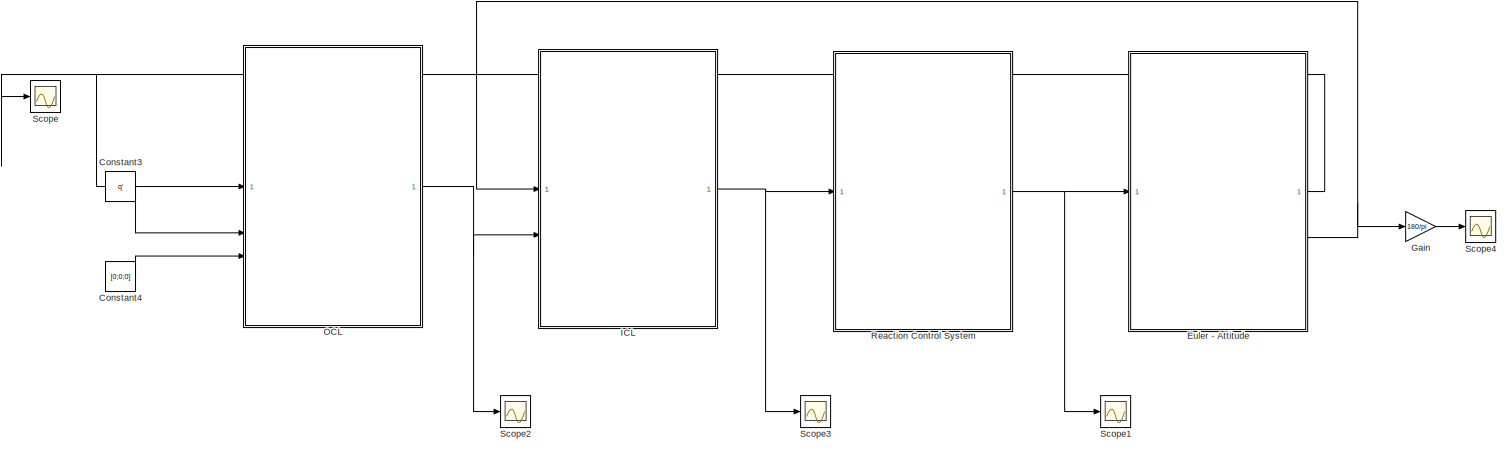
[diagram: root canvas - part 1/2, center side, full height]
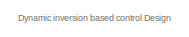
[diagram: root canvas - part 2/2, top left region]
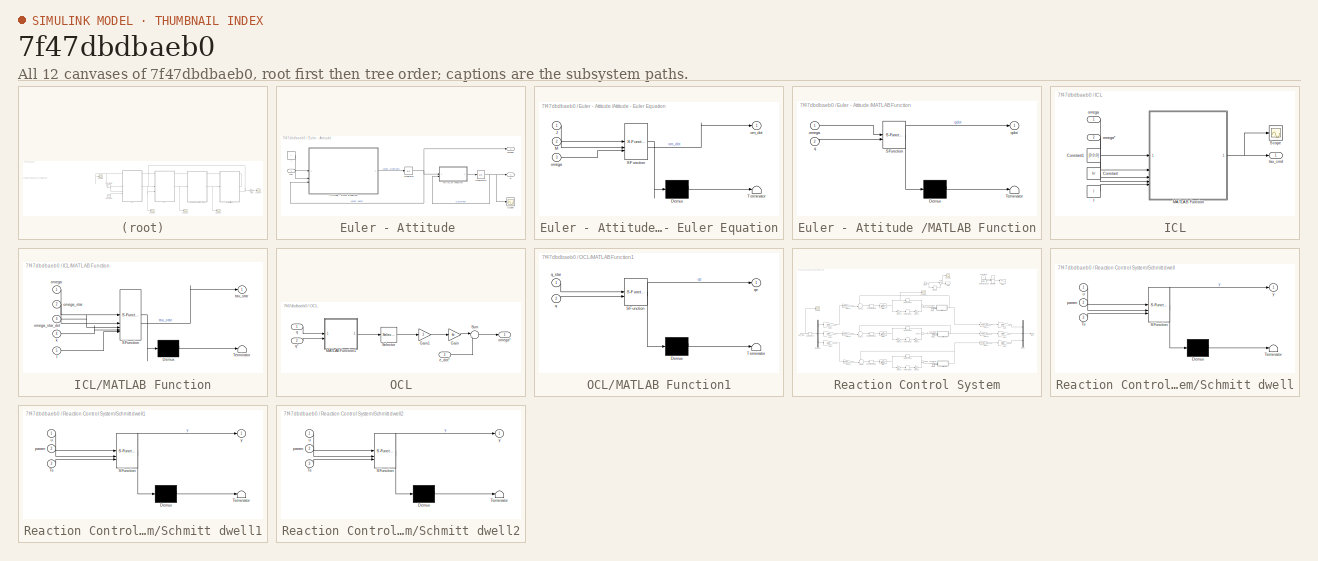
[diagram: thumbnail index - all 12 canvases of the model, root first then tree order]
MODEL slx_7f47dbdbaeb0
KIND model
CONFIG AbsTol = auto
CONFIG EnableMultiTasking = off
CONFIG FixedStep = 0.01
CONFIG MaxStep = auto
CONFIG MinStep = auto
CONFIG RelTol = 1e-3
CONFIG SampleTimeConstraint = Unconstrained
CONFIG SolverName = ode4
CONFIG StartTime = 0.0
CONFIG StopTime = 1000
BLOCK [Constant] Constant3
  Value = q'
BLOCK [Constant] Constant4
  Value = [0;0;0]
BLOCK [SubSystem] Euler - Attitude 
BLOCK [SubSystem] Euler - Attitude /Attitude - Euler Equation
  ErrorFcn = Stateflow.Translate.translate
  PermitHierarchicalResolution = ExplicitOnly
  SFBlockType = MATLAB Function
  TreatAsAtomicUnit = on
BLOCK [Demux] Euler - Attitude /Attitude - Euler Equation/ Demux 
  Outputs = 1
BLOCK [S-Function] Euler - Attitude /Attitude - Euler Equation/ SFunction 
  EnableBusSupport = on
  FunctionName = sf_sfun
  PortCounts = [3 2]
  SFcnIsStateOwnerBlock = off
  SFunctionDeploymentMode = off
  Tag = Stateflow S-Function 1
BLOCK [Terminator] Euler - Attitude /Attitude - Euler Equation/ Terminator 
BLOCK [Inport] Euler - Attitude /Attitude - Euler Equation/J
BLOCK [Inport] Euler - Attitude /Attitude - Euler Equation/M
  Port = 2
BLOCK [Outport] Euler - Attitude /Attitude - Euler Equation/om_dot
BLOCK [Inport] Euler - Attitude /Attitude - Euler Equation/omega
  Port = 3
BLOCK [Constant] Euler - Attitude /I
  Value = I
BLOCK [Integrator] Euler - Attitude /Integrator
  InitialCondition = [0; 0; 0]
BLOCK [Integrator] Euler - Attitude /Integrator3
  InitialCondition = [1; 0; 0; 0]
BLOCK [SubSystem] Euler - Attitude /MATLAB Function
  ErrorFcn = Stateflow.Translate.translate
  PermitHierarchicalResolution = ExplicitOnly
  SFBlockType = MATLAB Function
  TreatAsAtomicUnit = on
BLOCK [Demux] Euler - Attitude /MATLAB Function/ Demux 
  Outputs = 1
BLOCK [S-Function] Euler - Attitude /MATLAB Function/ SFunction 
  EnableBusSupport = on
  FunctionName = sf_sfun
  PortCounts = [2 2]
  SFcnIsStateOwnerBlock = off
  SFunctionDeploymentMode = off
  Tag = Stateflow S-Function 4
BLOCK [Terminator] Euler - Attitude /MATLAB Function/ Terminator 
BLOCK [Inport] Euler - Attitude /MATLAB Function/omega
BLOCK [Inport] Euler - Attitude /MATLAB Function/q
  Port = 2
BLOCK [Outport] Euler - Attitude /MATLAB Function/qdot
BLOCK [Scope] Euler - Attitude /Scope
  Floating = off
  NumInputPorts = 1
  ScopeSpecificationString = Simulink.scopes.TimeScopeBlockCfg('CurrentConfiguration', extmgr.ConfigurationSet(extmgr.Configuration('Core','General UI',true),extmgr.Configuration('Core','Source UI',true),extmgr.Configuration('Sources','WiredSimulink',true,'DataLoggingVariableName','ScopeData5'),extmgr.Configuration('Visuals','Time Domain',true,'SerializedDisplays',{struct('MinYLimReal','-0.76262','MaxYLimReal','1.19585','YLab...<+1582ch>
BLOCK [Outport] Euler - Attitude /omega
  Port = 2
BLOCK [Outport] Euler - Attitude /q
BLOCK [Inport] Euler - Attitude /tau
BLOCK [Gain] Gain
  Gain = 180/pi
BLOCK [SubSystem] ICL
  TreatAsAtomicUnit = on
BLOCK [Constant] ICL/Constant
  Value = kr
BLOCK [Constant] ICL/Constant1
  Value = [0;0;0]
BLOCK [Constant] ICL/I
  Value = I
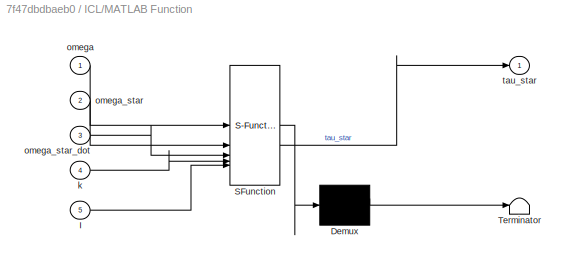
BLOCK [SubSystem] ICL/MATLAB Function
  ErrorFcn = Stateflow.Translate.translate
  PermitHierarchicalResolution = ExplicitOnly
  SFBlockType = MATLAB Function
  TreatAsAtomicUnit = on
BLOCK [Demux] ICL/MATLAB Function/ Demux 
  Outputs = 1
BLOCK [S-Function] ICL/MATLAB Function/ SFunction 
  EnableBusSupport = on
  FunctionName = sf_sfun
  PortCounts = [5 2]
  SFcnIsStateOwnerBlock = off
  SFunctionDeploymentMode = off
  Tag = Stateflow S-Function 7
BLOCK [Terminator] ICL/MATLAB Function/ Terminator 
BLOCK [Inport] ICL/MATLAB Function/I
  Port = 5
BLOCK [Inport] ICL/MATLAB Function/k
  Port = 4
BLOCK [Inport] ICL/MATLAB Function/omega
BLOCK [Inport] ICL/MATLAB Function/omega_star
  Port = 2
BLOCK [Inport] ICL/MATLAB Function/omega_star_dot
  Port = 3
BLOCK [Outport] ICL/MATLAB Function/tau_star
BLOCK [Scope] ICL/Scope
  Floating = off
  NumInputPorts = 1
  ScopeSpecificationString = Simulink.scopes.TimeScopeBlockCfg('CurrentConfiguration', extmgr.ConfigurationSet(extmgr.Configuration('Core','General UI',true),extmgr.Configuration('Core','Source UI',true),extmgr.Configuration('Sources','WiredSimulink',true,'DataLoggingVariableName','ScopeData4'),extmgr.Configuration('Visuals','Time Domain',true,'SerializedDisplays',{struct('MinYLimReal','-0.34522','MaxYLimReal','0.21951','YLab...<+1505ch>
BLOCK [Inport] ICL/omega
BLOCK [Inport] ICL/omega*
  Port = 2
BLOCK [Outport] ICL/tau_cmd
  NameLocation = right
BLOCK [SubSystem] OCL
  TreatAsAtomicUnit = on
BLOCK [Gain] OCL/Gain
  Gain = ka
BLOCK [Gain] OCL/Gain1
  Gain = 2
BLOCK [SubSystem] OCL/MATLAB Function1
  ErrorFcn = Stateflow.Translate.translate
  PermitHierarchicalResolution = ExplicitOnly
  SFBlockType = MATLAB Function
  TreatAsAtomicUnit = on
BLOCK [Demux] OCL/MATLAB Function1/ Demux 
  Outputs = 1
BLOCK [S-Function] OCL/MATLAB Function1/ SFunction 
  EnableBusSupport = on
  FunctionName = sf_sfun
  PortCounts = [2 2]
  SFcnIsStateOwnerBlock = off
  SFunctionDeploymentMode = off
  Tag = Stateflow S-Function 6
BLOCK [Terminator] OCL/MATLAB Function1/ Terminator 
BLOCK [Inport] OCL/MATLAB Function1/q
  Port = 2
BLOCK [Inport] OCL/MATLAB Function1/q_star
BLOCK [Outport] OCL/MATLAB Function1/qe
BLOCK [Selector] OCL/Selector
  IndexOptions = Index vector (dialog)
  Indices = 2:4
  InputPortWidth = 4
  OutputSizes = 1
BLOCK [Sum] OCL/Sum
  Inputs = |-+
BLOCK [Inport] OCL/e_dot*
  Port = 3
BLOCK [Outport] OCL/omega*
BLOCK [Inport] OCL/q
BLOCK [Inport] OCL/q*
  Port = 2
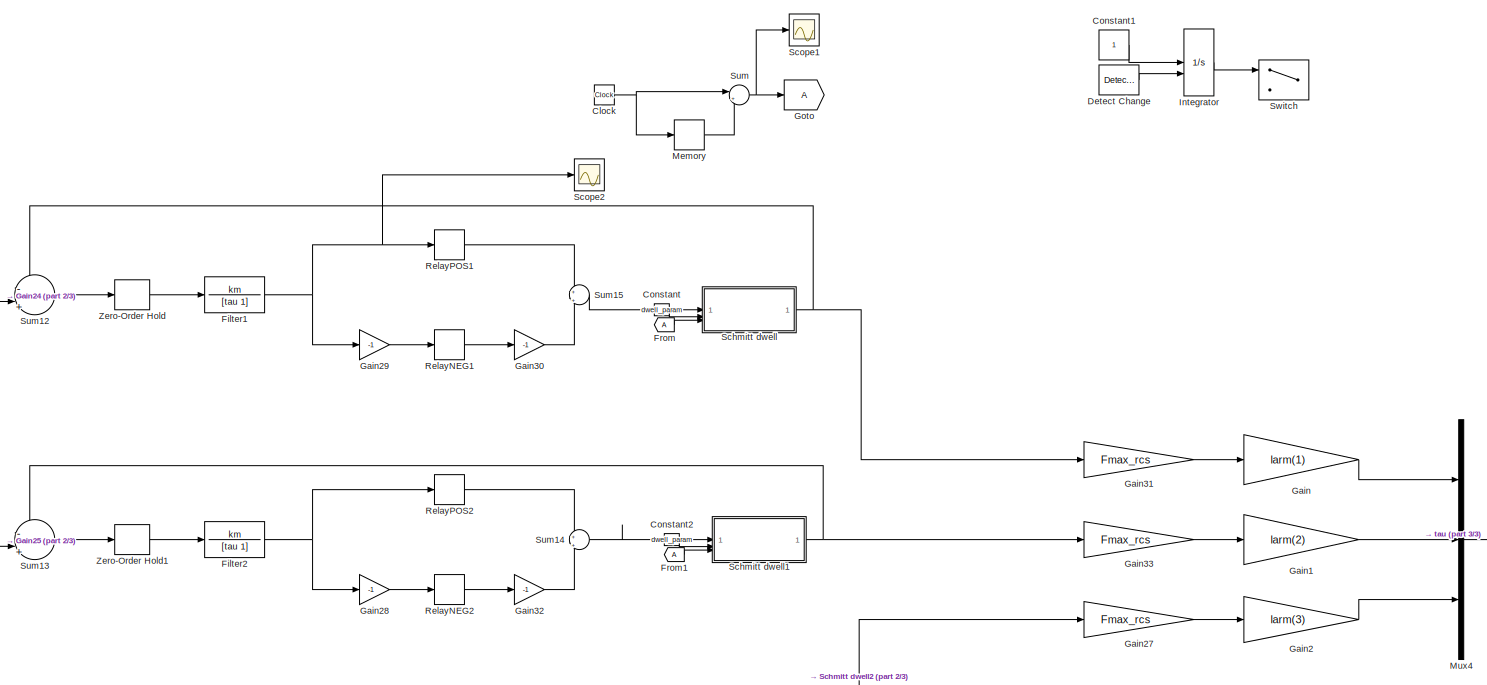
[diagram: Reaction Control System - part 1/3, center side, full height]
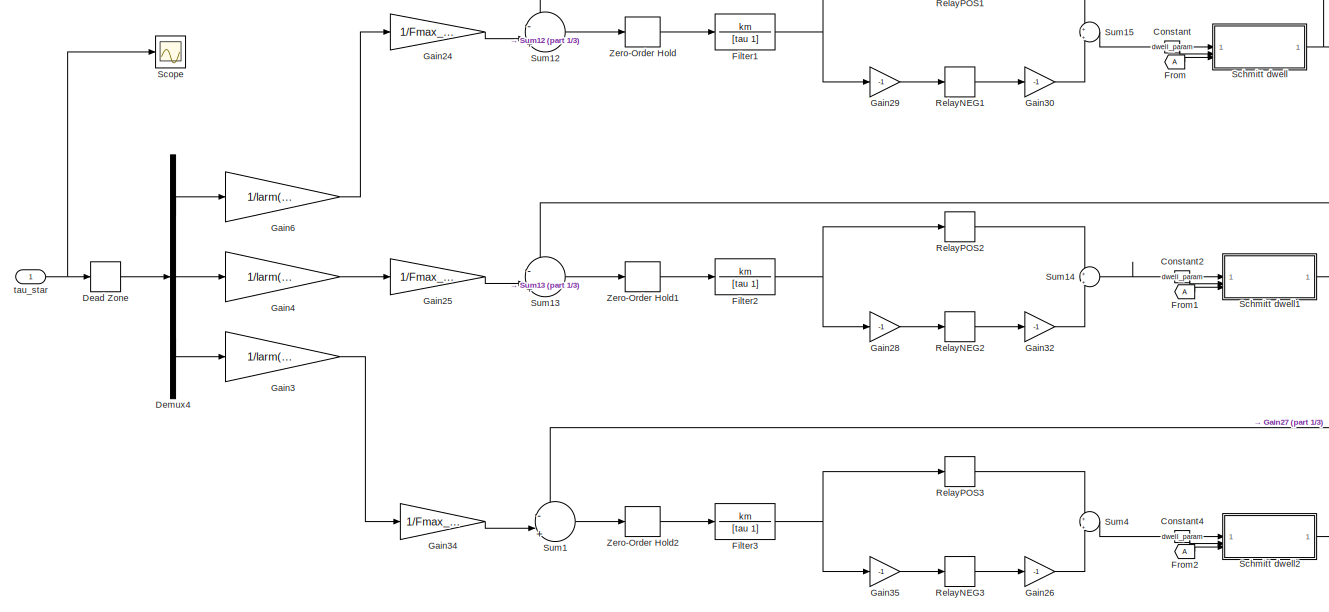
[diagram: Reaction Control System - part 2/3, middle left region]
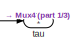
[diagram: Reaction Control System - part 3/3, middle right region]
BLOCK [SubSystem] Reaction Control System
  Commented = through
  TreatAsAtomicUnit = on
BLOCK [Clock] Reaction Control System/Clock
BLOCK [Constant] Reaction Control System/Constant
  Value = dwell_param
BLOCK [Constant] Reaction Control System/Constant1
  Commented = on
BLOCK [Constant] Reaction Control System/Constant2
  Value = dwell_param
BLOCK [Constant] Reaction Control System/Constant4
  Value = dwell_param
BLOCK [DeadZone] Reaction Control System/Dead Zone
  LowerValue = db(1)
  UpperValue = db(2)
BLOCK [Demux] Reaction Control System/Demux4
  Outputs = 3
BLOCK [Reference] Reaction Control System/Detect Change  REF=simulink/Logic and Bit
Operations/Detect
Change
  Commented = on
  SourceBlock = simulink/Logic and Bit\nOperations/Detect\nChange
  SourceType = Detect Change
BLOCK [TransferFcn] Reaction Control System/Filter1
  Denominator = [tau 1]
  Numerator = km
BLOCK [TransferFcn] Reaction Control System/Filter2
  Denominator = [tau 1]
  Numerator = km
BLOCK [TransferFcn] Reaction Control System/Filter3
  Denominator = [tau 1]
  Numerator = km
BLOCK [From] Reaction Control System/From
BLOCK [From] Reaction Control System/From1
BLOCK [From] Reaction Control System/From2
BLOCK [Gain] Reaction Control System/Gain
  Gain = larm(1)
BLOCK [Gain] Reaction Control System/Gain1
  Gain = larm(2)
BLOCK [Gain] Reaction Control System/Gain2
  Gain = larm(3)
BLOCK [Gain] Reaction Control System/Gain24
  Gain = 1/Fmax_rcs
BLOCK [Gain] Reaction Control System/Gain25
  Gain = 1/Fmax_rcs
BLOCK [Gain] Reaction Control System/Gain26
  Gain = -1
BLOCK [Gain] Reaction Control System/Gain27
  Gain = Fmax_rcs
BLOCK [Gain] Reaction Control System/Gain28
  Gain = -1
BLOCK [Gain] Reaction Control System/Gain29
  Gain = -1
BLOCK [Gain] Reaction Control System/Gain3
  Gain = 1/larm(3)
BLOCK [Gain] Reaction Control System/Gain30
  Gain = -1
BLOCK [Gain] Reaction Control System/Gain31
  Gain = Fmax_rcs
BLOCK [Gain] Reaction Control System/Gain32
  Gain = -1
BLOCK [Gain] Reaction Control System/Gain33
  Gain = Fmax_rcs
BLOCK [Gain] Reaction Control System/Gain34
  Gain = 1/Fmax_rcs
BLOCK [Gain] Reaction Control System/Gain35
  Gain = -1
BLOCK [Gain] Reaction Control System/Gain4
  Gain = 1/larm(2)
BLOCK [Gain] Reaction Control System/Gain6
  Gain = 1/larm(1)
BLOCK [Goto] Reaction Control System/Goto
BLOCK [Integrator] Reaction Control System/Integrator
  Commented = on
  ExternalReset = level
BLOCK [Memory] Reaction Control System/Memory
BLOCK [Mux] Reaction Control System/Mux4
  DisplayOption = bar
  Inputs = 3
BLOCK [Relay] Reaction Control System/RelayNEG1
  OffSwitchValue = 0.15
  OnSwitchValue = 0.45
  SampleTime = 0.01
  ZeroCross = off
BLOCK [Relay] Reaction Control System/RelayNEG2
  OffSwitchValue = Uoff
  OnSwitchValue = Uon
  SampleTime = 0.01
  ZeroCross = off
BLOCK [Relay] Reaction Control System/RelayNEG3
  OffSwitchValue = 0.15
  OnSwitchValue = 0.45
  SampleTime = 0.01
  ZeroCross = off
BLOCK [Relay] Reaction Control System/RelayPOS1
  OffSwitchValue = Uoff
  OnSwitchValue = Uon
  SampleTime = 0.01
  ZeroCross = off
BLOCK [Relay] Reaction Control System/RelayPOS2
  OffSwitchValue = Uoff
  OnSwitchValue = Uon
  SampleTime = 0.01
  ZeroCross = off
BLOCK [Relay] Reaction Control System/RelayPOS3
  OffSwitchValue = Uoff
  OnSwitchValue = Uon
  SampleTime = 0.01
  ZeroCross = off
BLOCK [SubSystem] Reaction Control System/Schmitt dwell
  ErrorFcn = Stateflow.Translate.translate
  PermitHierarchicalResolution = ExplicitOnly
  SFBlockType = MATLAB Function
  TreatAsAtomicUnit = on
BLOCK [Demux] Reaction Control System/Schmitt dwell/ Demux 
  Outputs = 1
BLOCK [S-Function] Reaction Control System/Schmitt dwell/ SFunction 
  EnableBusSupport = on
  FunctionName = sf_sfun
  PortCounts = [3 2]
  SFcnIsStateOwnerBlock = off
  SFunctionDeploymentMode = off
  Tag = Stateflow S-Function 2
BLOCK [Terminator] Reaction Control System/Schmitt dwell/ Terminator 
BLOCK [Inport] Reaction Control System/Schmitt dwell/Ts
  Port = 3
BLOCK [Inport] Reaction Control System/Schmitt dwell/param
  Port = 2
BLOCK [Inport] Reaction Control System/Schmitt dwell/u
BLOCK [Outport] Reaction Control System/Schmitt dwell/y
BLOCK [SubSystem] Reaction Control System/Schmitt dwell1
  ErrorFcn = Stateflow.Translate.translate
  PermitHierarchicalResolution = ExplicitOnly
  SFBlockType = MATLAB Function
  TreatAsAtomicUnit = on
BLOCK [Demux] Reaction Control System/Schmitt dwell1/ Demux 
  Outputs = 1
BLOCK [S-Function] Reaction Control System/Schmitt dwell1/ SFunction 
  EnableBusSupport = on
  FunctionName = sf_sfun
  PortCounts = [3 2]
  SFcnIsStateOwnerBlock = off
  SFunctionDeploymentMode = off
  Tag = Stateflow S-Function 3
BLOCK [Terminator] Reaction Control System/Schmitt dwell1/ Terminator 
BLOCK [Inport] Reaction Control System/Schmitt dwell1/Ts
  Port = 3
BLOCK [Inport] Reaction Control System/Schmitt dwell1/param
  Port = 2
BLOCK [Inport] Reaction Control System/Schmitt dwell1/u
BLOCK [Outport] Reaction Control System/Schmitt dwell1/y
BLOCK [SubSystem] Reaction Control System/Schmitt dwell2
  ErrorFcn = Stateflow.Translate.translate
  PermitHierarchicalResolution = ExplicitOnly
  SFBlockType = MATLAB Function
  TreatAsAtomicUnit = on
BLOCK [Demux] Reaction Control System/Schmitt dwell2/ Demux 
  Outputs = 1
BLOCK [S-Function] Reaction Control System/Schmitt dwell2/ SFunction 
  EnableBusSupport = on
  FunctionName = sf_sfun
  PortCounts = [3 2]
  SFcnIsStateOwnerBlock = off
  SFunctionDeploymentMode = off
  Tag = Stateflow S-Function 9
BLOCK [Terminator] Reaction Control System/Schmitt dwell2/ Terminator 
BLOCK [Inport] Reaction Control System/Schmitt dwell2/Ts
  Port = 3
BLOCK [Inport] Reaction Control System/Schmitt dwell2/param
  Port = 2
BLOCK [Inport] Reaction Control System/Schmitt dwell2/u
BLOCK [Outport] Reaction Control System/Schmitt dwell2/y
BLOCK [Scope] Reaction Control System/Scope
  Floating = off
  NumInputPorts = 1
  ScopeSpecificationString = Simulink.scopes.TimeScopeBlockCfg('CurrentConfiguration', extmgr.ConfigurationSet(extmgr.Configuration('Core','General UI',true),extmgr.Configuration('Core','Source UI',true),extmgr.Configuration('Sources','WiredSimulink',true,'DataLoggingVariableName','ScopeData2'),extmgr.Configuration('Visuals','Time Domain',true,'SerializedDisplays',{struct('MinYLimReal','-5000.00000','MaxYLimReal','5000.00000'...<+1550ch>
BLOCK [Scope] Reaction Control System/Scope1
  Floating = off
  NumInputPorts = 1
  ScopeSpecificationString = Simulink.scopes.TimeScopeBlockCfg('CurrentConfiguration', extmgr.ConfigurationSet(extmgr.Configuration('Core','General UI',true),extmgr.Configuration('Core','Source UI',true),extmgr.Configuration('Sources','WiredSimulink',true,'DataLoggingVariableName','ScopeData3'),extmgr.Configuration('Visuals','Time Domain',true,'SerializedDisplays',{struct('MinYLimReal','-0.00125','MaxYLimReal','0.01125','YLab...<+1476ch>
BLOCK [Scope] Reaction Control System/Scope2
  Floating = off
  NumInputPorts = 1
  ScopeSpecificationString = Simulink.scopes.TimeScopeBlockCfg('CurrentConfiguration', extmgr.ConfigurationSet(extmgr.Configuration('Core','General UI',true),extmgr.Configuration('Core','Source UI',true),extmgr.Configuration('Sources','WiredSimulink',true,'DataLoggingVariableName','ScopeData4'),extmgr.Configuration('Visuals','Time Domain',true,'SerializedDisplays',{struct('MinYLimReal','-0.56194','MaxYLimReal','0.51297','YLab...<+1530ch>
BLOCK [Sum] Reaction Control System/Sum
  Inputs = |+-
BLOCK [Sum] Reaction Control System/Sum1
  Inputs = -||+|||
BLOCK [Sum] Reaction Control System/Sum12
  Inputs = -||+|||
BLOCK [Sum] Reaction Control System/Sum13
  Inputs = -||+|||
BLOCK [Sum] Reaction Control System/Sum14
  Inputs = +|+
BLOCK [Sum] Reaction Control System/Sum15
  Inputs = +|+
BLOCK [Sum] Reaction Control System/Sum4
  Inputs = +|+
BLOCK [Switch] Reaction Control System/Switch
  Commented = on
  InputSameDT = off
  SaturateOnIntegerOverflow = off
  Threshold = min_on
BLOCK [ZeroOrderHold] Reaction Control System/Zero-Order Hold
  SampleTime = 0.01
BLOCK [ZeroOrderHold] Reaction Control System/Zero-Order Hold1
  SampleTime = 0.01
BLOCK [ZeroOrderHold] Reaction Control System/Zero-Order Hold2
  SampleTime = 0.01
BLOCK [Outport] Reaction Control System/tau
BLOCK [Inport] Reaction Control System/tau_star
BLOCK [Scope] Scope
  Floating = off
  NumInputPorts = 1
  ScopeSpecificationString = Simulink.scopes.TimeScopeBlockCfg('CurrentConfiguration', extmgr.ConfigurationSet(extmgr.Configuration('Core','General UI',true),extmgr.Configuration('Core','Source UI',true),extmgr.Configuration('Sources','WiredSimulink',true,'DataLoggingVariableName','ScopeData5'),extmgr.Configuration('Visuals','Time Domain',true,'SerializedDisplays',{struct('MinYLimReal','-98.824','MaxYLimReal','197.45984','YLa...<+1662ch>
BLOCK [Scope] Scope1
  Floating = off
  NumInputPorts = 1
  ScopeSpecificationString = Simulink.scopes.TimeScopeBlockCfg('CurrentConfiguration', extmgr.ConfigurationSet(extmgr.Configuration('Core','General UI',true),extmgr.Configuration('Core','Source UI',true),extmgr.Configuration('Sources','WiredSimulink',true,'DataLoggingVariableName','ScopeData2'),extmgr.Configuration('Visuals','Time Domain',true,'SerializedDisplays',{struct('MinYLimReal','-5000.00000','MaxYLimReal','5000.00000'...<+1627ch>
BLOCK [Scope] Scope2
  Floating = off
  NumInputPorts = 1
  ScopeSpecificationString = Simulink.scopes.TimeScopeBlockCfg('CurrentConfiguration', extmgr.ConfigurationSet(extmgr.Configuration('Core','General UI',true),extmgr.Configuration('Core','Source UI',true),extmgr.Configuration('Sources','WiredSimulink',true,'DataLoggingVariableName','ScopeData5'),extmgr.Configuration('Visuals','Time Domain',true,'SerializedDisplays',{struct('MinYLimReal','-1.58866','MaxYLimReal','0.17652','YLab...<+1513ch>
BLOCK [Scope] Scope3
  Floating = off
  NumInputPorts = 1
  ScopeSpecificationString = Simulink.scopes.TimeScopeBlockCfg('CurrentConfiguration', extmgr.ConfigurationSet(extmgr.Configuration('Core','General UI',true),extmgr.Configuration('Core','Source UI',true),extmgr.Configuration('Sources','WiredSimulink',true,'DataLoggingVariableName','ScopeData1'),extmgr.Configuration('Visuals','Time Domain',true,'SerializedDisplays',{struct('MinYLimReal','-12525.76296','MaxYLimReal','2944.98539...<+1516ch>
BLOCK [Scope] Scope4
  Floating = off
  NumInputPorts = 1
  ScopeSpecificationString = Simulink.scopes.TimeScopeBlockCfg('CurrentConfiguration', extmgr.ConfigurationSet(extmgr.Configuration('Core','General UI',true),extmgr.Configuration('Core','Source UI',true),extmgr.Configuration('Sources','WiredSimulink',true,'DataLoggingVariableName','ScopeData1'),extmgr.Configuration('Visuals','Time Domain',true,'SerializedDisplays',{struct('MinYLimReal','-5.79328','MaxYLimReal','1.13879','YLab...<+1491ch>
ANNOTATION (root): Dynamic inversion based control Design
LINE Constant3:1 -> OCL:2
LINE Constant4:1 -> OCL:3
LINE Euler - Attitude /Attitude - Euler Equation:1 -> Euler - Attitude /Integrator:1
LINE Euler - Attitude /I:1 -> Euler - Attitude /Attitude - Euler Equation:1
NET Euler - Attitude /Integrator3:1 -> Euler - Attitude /MATLAB Function:2, Euler - Attitude /Scope:1, Euler - Attitude /q:1
NET Euler - Attitude /Integrator:1 -> Euler - Attitude /Attitude - Euler Equation:3, Euler - Attitude /MATLAB Function:1, Euler - Attitude /omega:1
LINE Euler - Attitude /MATLAB Function:1 -> Euler - Attitude /Integrator3:1
LINE Euler - Attitude /tau:1 -> Euler - Attitude /Attitude - Euler Equation:2
NET Euler - Attitude :1 -> OCL:1, Scope:1
NET Euler - Attitude :2 -> Gain:1, ICL:1
LINE Gain:1 -> Scope4:1
LINE ICL/Constant1:1 -> ICL/MATLAB Function:3
LINE ICL/Constant:1 -> ICL/MATLAB Function:4
LINE ICL/I:1 -> ICL/MATLAB Function:5
NET ICL/MATLAB Function:1 -> ICL/Scope:1, ICL/tau_cmd:1
LINE ICL/omega*:1 -> ICL/MATLAB Function:2
LINE ICL/omega:1 -> ICL/MATLAB Function:1
NET ICL:1 -> Reaction Control System:1, Scope3:1
LINE OCL/Gain1:1 -> OCL/Gain:1
LINE OCL/Gain:1 -> OCL/Sum:1
LINE OCL/MATLAB Function1:1 -> OCL/Selector:1
LINE OCL/Selector:1 -> OCL/Gain1:1
LINE OCL/Sum:1 -> OCL/omega*:1
LINE OCL/e_dot*:1 -> OCL/Sum:2
LINE OCL/q*:1 -> OCL/MATLAB Function1:2
LINE OCL/q:1 -> OCL/MATLAB Function1:1
NET OCL:1 -> ICL:2, Scope2:1
NET Reaction Control System/Clock:1 -> Reaction Control System/Memory:1, Reaction Control System/Sum:1
LINE Reaction Control System/Constant1:1 -> Reaction Control System/Integrator:1
LINE Reaction Control System/Constant2:1 -> Reaction Control System/Schmitt dwell1:2
LINE Reaction Control System/Constant4:1 -> Reaction Control System/Schmitt dwell2:2
LINE Reaction Control System/Constant:1 -> Reaction Control System/Schmitt dwell:2
LINE Reaction Control System/Dead Zone:1 -> Reaction Control System/Demux4:1
LINE Reaction Control System/Demux4:1 -> Reaction Control System/Gain6:1
LINE Reaction Control System/Demux4:2 -> Reaction Control System/Gain4:1
LINE Reaction Control System/Demux4:3 -> Reaction Control System/Gain3:1
LINE Reaction Control System/Detect Change:1 -> Reaction Control System/Integrator:2
NET Reaction Control System/Filter1:1 -> Reaction Control System/Gain29:1, Reaction Control System/RelayPOS1:1, Reaction Control System/Scope2:1
NET Reaction Control System/Filter2:1 -> Reaction Control System/Gain28:1, Reaction Control System/RelayPOS2:1
NET Reaction Control System/Filter3:1 -> Reaction Control System/Gain35:1, Reaction Control System/RelayPOS3:1
LINE Reaction Control System/From1:1 -> Reaction Control System/Schmitt dwell1:3
LINE Reaction Control System/From2:1 -> Reaction Control System/Schmitt dwell2:3
LINE Reaction Control System/From:1 -> Reaction Control System/Schmitt dwell:3
LINE Reaction Control System/Gain1:1 -> Reaction Control System/Mux4:2
LINE Reaction Control System/Gain24:1 -> Reaction Control System/Sum12:2
LINE Reaction Control System/Gain25:1 -> Reaction Control System/Sum13:2
LINE Reaction Control System/Gain26:1 -> Reaction Control System/Sum4:2
LINE Reaction Control System/Gain27:1 -> Reaction Control System/Gain2:1
LINE Reaction Control System/Gain28:1 -> Reaction Control System/RelayNEG2:1
LINE Reaction Control System/Gain29:1 -> Reaction Control System/RelayNEG1:1
LINE Reaction Control System/Gain2:1 -> Reaction Control System/Mux4:3
LINE Reaction Control System/Gain30:1 -> Reaction Control System/Sum15:2
LINE Reaction Control System/Gain31:1 -> Reaction Control System/Gain:1
LINE Reaction Control System/Gain32:1 -> Reaction Control System/Sum14:2
LINE Reaction Control System/Gain33:1 -> Reaction Control System/Gain1:1
LINE Reaction Control System/Gain34:1 -> Reaction Control System/Sum1:2
LINE Reaction Control System/Gain35:1 -> Reaction Control System/RelayNEG3:1
LINE Reaction Control System/Gain3:1 -> Reaction Control System/Gain34:1
LINE Reaction Control System/Gain4:1 -> Reaction Control System/Gain25:1
LINE Reaction Control System/Gain6:1 -> Reaction Control System/Gain24:1
LINE Reaction Control System/Gain:1 -> Reaction Control System/Mux4:1
LINE Reaction Control System/Integrator:1 -> Reaction Control System/Switch:1
LINE Reaction Control System/Memory:1 -> Reaction Control System/Sum:2
LINE Reaction Control System/Mux4:1 -> Reaction Control System/tau:1
LINE Reaction Control System/RelayNEG1:1 -> Reaction Control System/Gain30:1
LINE Reaction Control System/RelayNEG2:1 -> Reaction Control System/Gain32:1
LINE Reaction Control System/RelayNEG3:1 -> Reaction Control System/Gain26:1
LINE Reaction Control System/RelayPOS1:1 -> Reaction Control System/Sum15:1
LINE Reaction Control System/RelayPOS2:1 -> Reaction Control System/Sum14:1
LINE Reaction Control System/RelayPOS3:1 -> Reaction Control System/Sum4:1
NET Reaction Control System/Schmitt dwell1:1 -> Reaction Control System/Gain33:1, Reaction Control System/Sum13:1
NET Reaction Control System/Schmitt dwell2:1 -> Reaction Control System/Gain27:1, Reaction Control System/Sum1:1
NET Reaction Control System/Schmitt dwell:1 -> Reaction Control System/Gain31:1, Reaction Control System/Sum12:1
LINE Reaction Control System/Sum12:1 -> Reaction Control System/Zero-Order Hold:1
LINE Reaction Control System/Sum13:1 -> Reaction Control System/Zero-Order Hold1:1
LINE Reaction Control System/Sum14:1 -> Reaction Control System/Schmitt dwell1:1
LINE Reaction Control System/Sum15:1 -> Reaction Control System/Schmitt dwell:1
LINE Reaction Control System/Sum1:1 -> Reaction Control System/Zero-Order Hold2:1
LINE Reaction Control System/Sum4:1 -> Reaction Control System/Schmitt dwell2:1
NET Reaction Control System/Sum:1 -> Reaction Control System/Goto:1, Reaction Control System/Scope1:1
LINE Reaction Control System/Zero-Order Hold1:1 -> Reaction Control System/Filter2:1
LINE Reaction Control System/Zero-Order Hold2:1 -> Reaction Control System/Filter3:1
LINE Reaction Control System/Zero-Order Hold:1 -> Reaction Control System/Filter1:1
NET Reaction Control System/tau_star:1 -> Reaction Control System/Dead Zone:1, Reaction Control System/Scope:1
NET Reaction Control System:1 -> Euler - Attitude :1, Scope1:1
note: NET lines group one-source signal fan-out (src -> all destinations, sorted); 1:1 wires keep LINE
CHART Euler - Attitude /Attitude - Euler Equation states=1 transitions=1
  STATE_LABEL 'eML_blk_kernel()'
  STATE_LABEL 'SCRIPT:\nfunction om_dot = rotation(J, M, omega)\n    \n    om_dot = inv(J)*(M-cross(omega,J*omega));\n\nend'
CHART Reaction Control System/Schmitt dwell states=1 transitions=1
  STATE_LABEL 'eML_blk_kernel()'
  STATE_LABEL 'SCRIPT:\nfunction y = schmitt_dwell(u, param, Ts)\n\n    % u: input command (scalar)\n    % param = [Uon, Uoff, min_on, min_off]\n    % Ts: sample time [s]\n    \n    persistent state1 ton1 toff1\n    \n    min_on  = param(3);\n    min_off = param(4);\n    \n    if isempty(state1)\n        state1 = 0;   % start OFF\n        ton1 = 0; toff1 = 0;\n    end\n    \n    if u>0\n        a=1;\n    end\n    \n    % Update time...<+545ch>'
CHART Reaction Control System/Schmitt dwell1 states=1 transitions=1
  STATE_LABEL 'eML_blk_kernel()'
  STATE_LABEL 'SCRIPT:\nfunction y = schmitt_dwell(u, param, Ts)\n\n    % u: input command (scalar)\n    % param = [Uon, Uoff, min_on, min_off]\n    % Ts: sample time [s]\n    \n    persistent state2 ton2 toff2\n    \n    if u == -1\n        a=1;\n    end\n\n    min_on  = param(3);\n    min_off = param(4);\n    \n    if isempty(state2)\n        state2 = 0;   % start OFF\n        ton2 = 0; toff2 = 0;\n    end\n    \n    % Update time...<+545ch>'
CHART Euler - Attitude /MATLAB Function states=1 transitions=1
  STATE_LABEL 'eML_blk_kernel()'
  STATE_LABEL "SCRIPT:\nfunction qdot = fcn(omega,q)\n\nOmega = [0 -omega(1) -omega(2) -omega(3);\n         omega(1) 0 omega(3) omega(2);\n         omega(2) omega(3) 0 omega(1);\n         omega(3) omega(2) omega(1) 0];\n\nq0 = q(1);\nq1 = q(2);\nq2 = q(3);\nq3 = q(4);\n\nqdot = 0.5*Omega*[q0 q1 q2 q3]';\n"
CHART OCL/MATLAB Function1 states=1 transitions=1
  STATE_LABEL 'eML_blk_kernel()'
  STATE_LABEL 'SCRIPT:\nfunction qe = quat_err(q_star, q)\n\n    % qe = conj(qd) ⊗ qa, with simple normalization\n    q_star = q_star(:)/norm(q_star);  % normalize\n    q = q(:)/norm(q);\n    \n    % conjugate of qd (q desired)\n    qd_conj = [q_star(1); -q_star(2:4)];\n    \n    % quaternion product qd_conj ⊗ qa (q actual)\n    w1=qd_conj(1); v1=qd_conj(2:4);\n    w2=q(1);      v2=q(2:4);\n    w = w1*w2 - dot(v1,v2);\n    v ...<+167ch>'
CHART ICL/MATLAB Function states=1 transitions=1
  STATE_LABEL 'eML_blk_kernel()'
  STATE_LABEL 'SCRIPT:\nfunction tau_star = fcn(omega, omega_star, omega_star_dot, k ,I)\n    \n    tau_star = I*(omega_star_dot-k.*(omega-omega_star)) + [(I(3,3)-I(2,2))*omega(2)*omega(3); (I(1,1)-I(3,3))*omega(1)*omega(3); (I(2,2)-I(1,1))*omega(1)*omega(2)];\n    tau_max = 4e3;\n    tau_star = min(max(tau_star, -tau_max), tau_max);\n\nend\n'
CHART Reaction Control System/Schmitt dwell2 states=1 transitions=1
  STATE_LABEL 'eML_blk_kernel()'
  STATE_LABEL 'SCRIPT:\nfunction y = schmitt_dwell(u, param, Ts)\n\n    % u: input command (scalar)\n    % param = [Uon, Uoff, min_on, min_off]\n    % Ts: sample time [s]\n    \n    persistent state3 ton3 toff3\n    \n    if u == -1\n        a=1;\n    end\n\n    min_on  = param(3);\n    min_off = param(4);\n    \n    if isempty(state3)\n        state3 = 0;   % start OFF\n        ton3 = 0; toff3 = 0;\n    end\n    \n    % Update time...<+545ch>'
CHART  states=0 transitions=0
CHART  states=0 transitions=0
CHART  states=0 transitions=0
CHART  states=0 transitions=0
CHART  states=0 transitions=0
CHART  states=0 transitions=0
CHART  states=0 transitions=0
